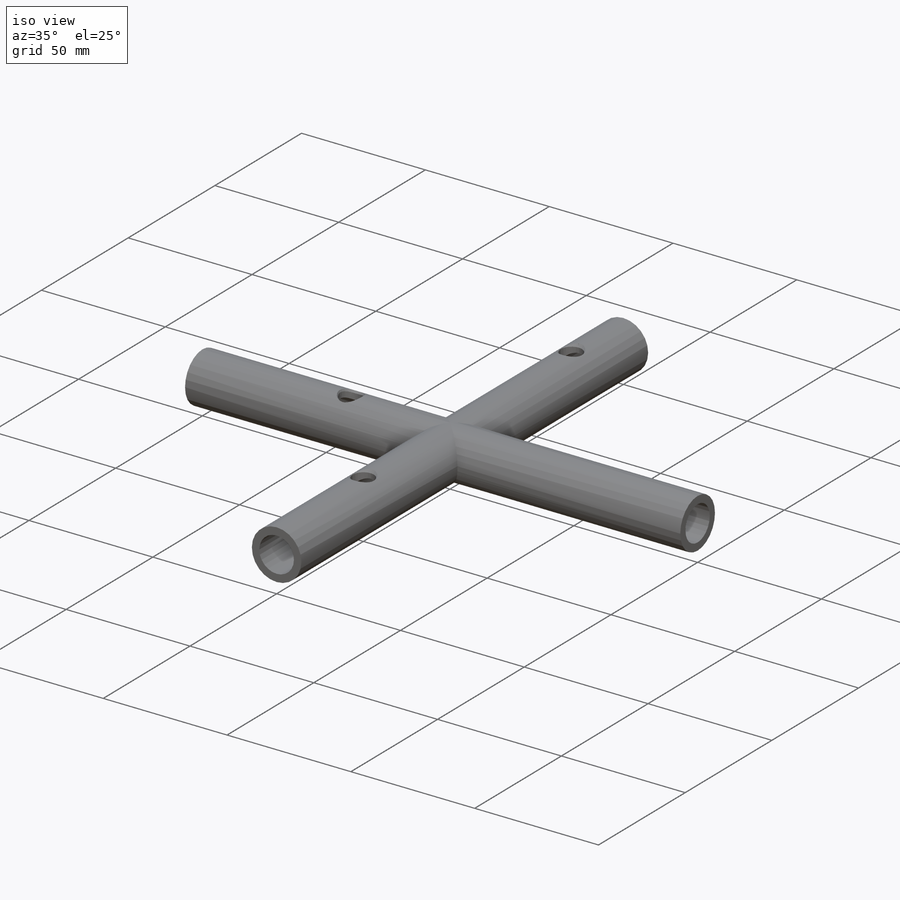
[diagram: iso view]
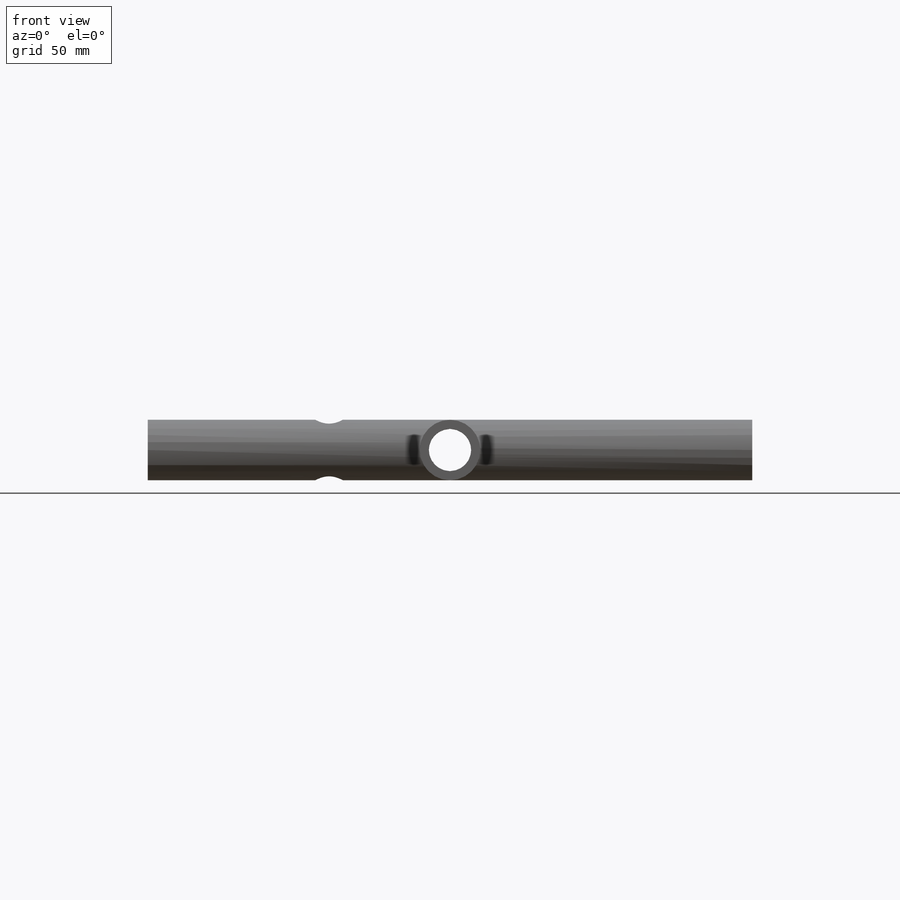
[diagram: front view]
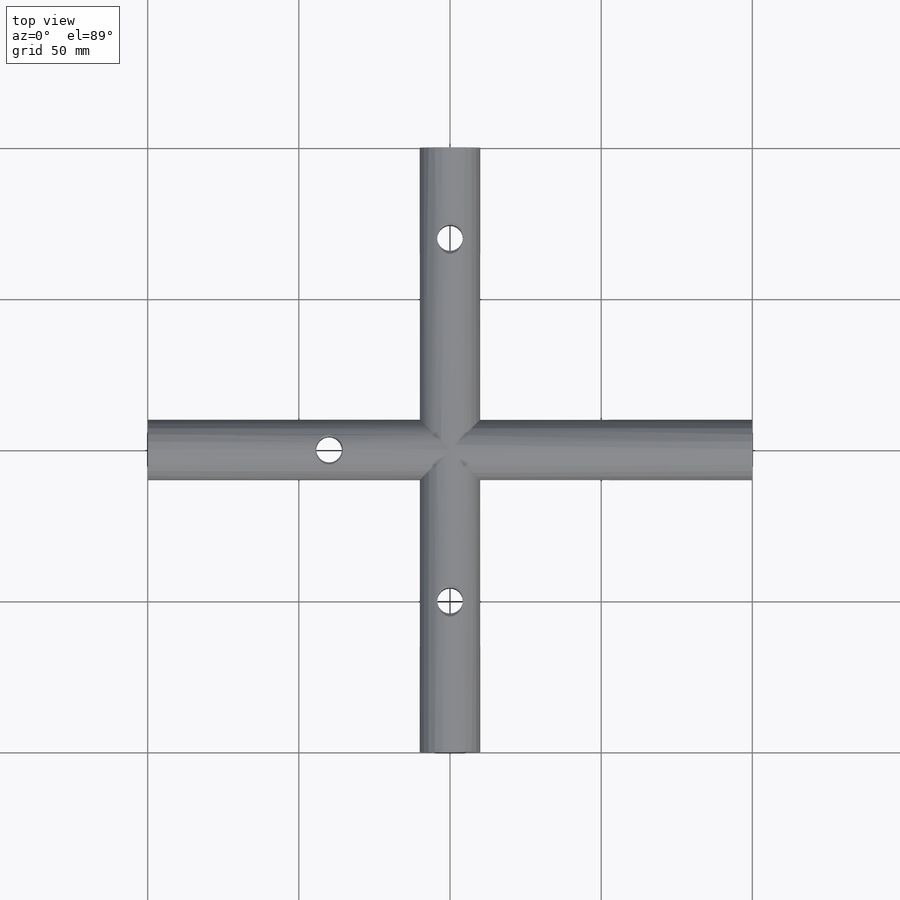
[diagram: top view]
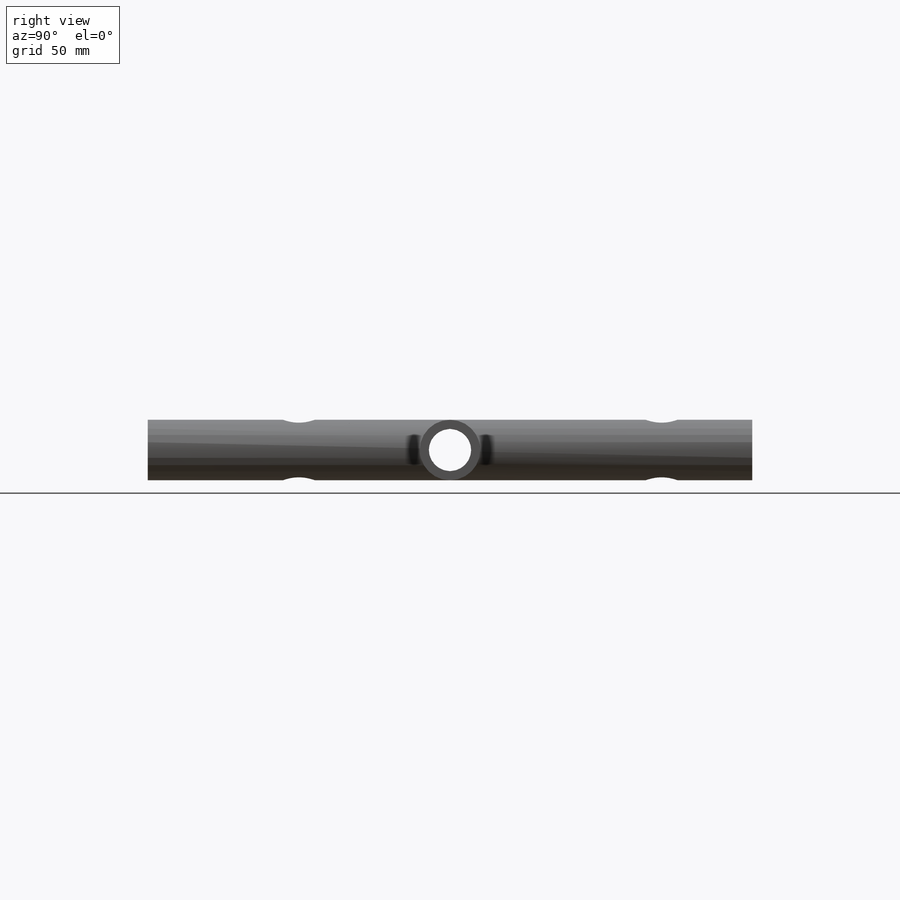
[diagram: right view]
SOLIDWORKS PART (.sldprt)
format: sldprt  version: not decoded by parser v0  size: 408,576 bytes
history: native  units: mm
features: sketch x9, plane x4, cut_extrude x3, thread x3, extrude x2, hole x2, material x1, chamfer x1 (+12 scaffold rows collapsed; 3 parser-record rows omitted)
feature tree (40):
  scaffold x12  (default folders/planes/origin — collapsed)
  material  "Material <nicht festgelegt>"
  plane  "Ebene vorne"
  plane  "Ebene oben"
  plane  "Ebene rechts"
  sketch  "Skizze1"  dims[c1.D1=~33.161806mm c2.D1=20.0mm]
  extrude  "Aufsatz-Linear austragen1"  Depth=200mm
  sketch  "Skizze2"  dims[D1=20.0mm]
  extrude  "Aufsatz-Linear austragen2"  Depth=200mm
  sketch  "Skizze3"  dims[D1=3.0mm]
  cut_extrude  "Schnitt-Linear austragen1"  [1 undecoded]
  sketch  "Skizze4"  dims[D1=3.0mm]
  cut_extrude  "Schnitt-Linear austragen2"  [1 undecoded]
  parser-record x3  (decoder bookkeeping rows leaked as tree rows — omitted from the tree; the rows remain in map.json)
  hole  "M10 Gewindebohrung1"  [1 undecoded]
  sketch  "3D-Skizze1"  dims[D1=50.0mm]
  thread  "Bohrungsgewinde1"  Diameter=10mm  [1 undecoded]
  sketch  "Skizze5"  dims[hole-wizard template sketch: 46 standard entries collapsed; hole parameters kept: c15.Bohrerdurchmesser=8.5mm c15.Bohrungstiefe=20.0mm c15.Senkdurchmesser (Oben)=10.5mm c15.D4=~3.666174mm c15.Senkwinkel (Oben)=90.0deg c15.Senkdurchmesser (Unten)=10.5mm c15.D6=~9.919017mm c15.Senkwinkel (Unten)=90.0deg]
  plane  "Ebene1"
  hole  "M10 Gewindebohrung2"  [1 undecoded]
  sketch  "Skizze7"  dims[D1=70.0mm]
  thread  "Bohrungsgewinde2"  Diameter=10mm  [1 undecoded]
  sketch  "Skizze6"  dims[hole-wizard template sketch: 46 standard entries collapsed; hole parameters kept: c15.Bohrerdurchmesser=8.5mm c15.Bohrungstiefe=20.0mm c15.Senkdurchmesser (Oben)=10.5mm c15.D4=~3.666174mm c15.Senkwinkel (Oben)=90.0deg c15.Senkdurchmesser (Unten)=10.5mm c15.D6=~9.919017mm c15.Senkwinkel (Unten)=90.0deg]
  sketch  "Skizze8"  dims[D1=8.5mm D2=40.0mm]
  cut_extrude  "Schnitt-Linear austragen3"  [1 undecoded]
  thread  "Gewindedarstellung1"  Diameter=10mm  [1 undecoded]
  chamfer  "Fase1"  Distance=1mm Angle=45deg
decode coverage: 15 of 20 modeling features carry decoded parameters
note: ~ marks probable driven/reference dimensions
note: 8 parameter values undecoded
summary: no parameter record found for 5 features
note: suppression state not decoded; provenance and decode notes live in map.json
